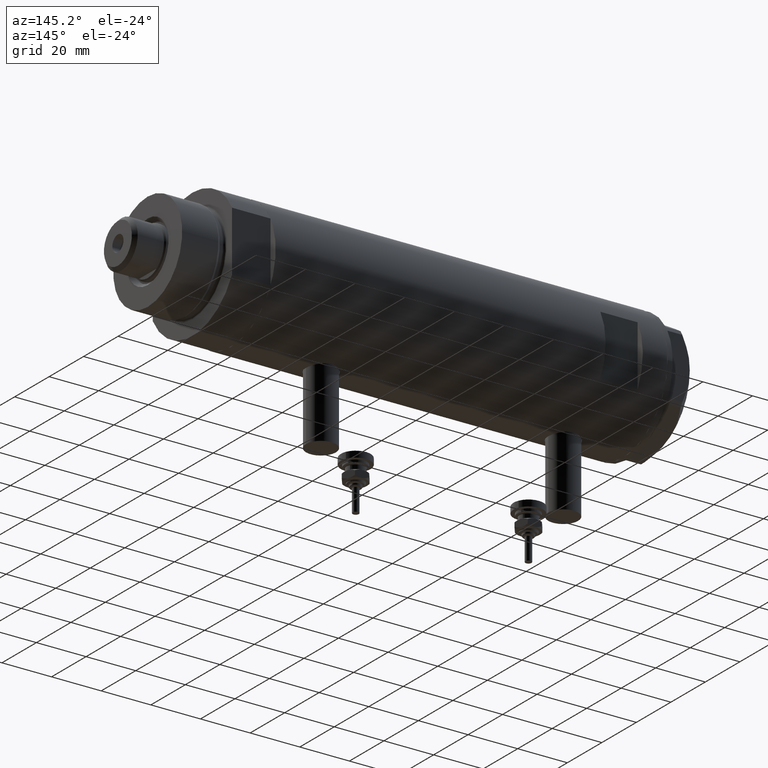
[diagram: clean part render]
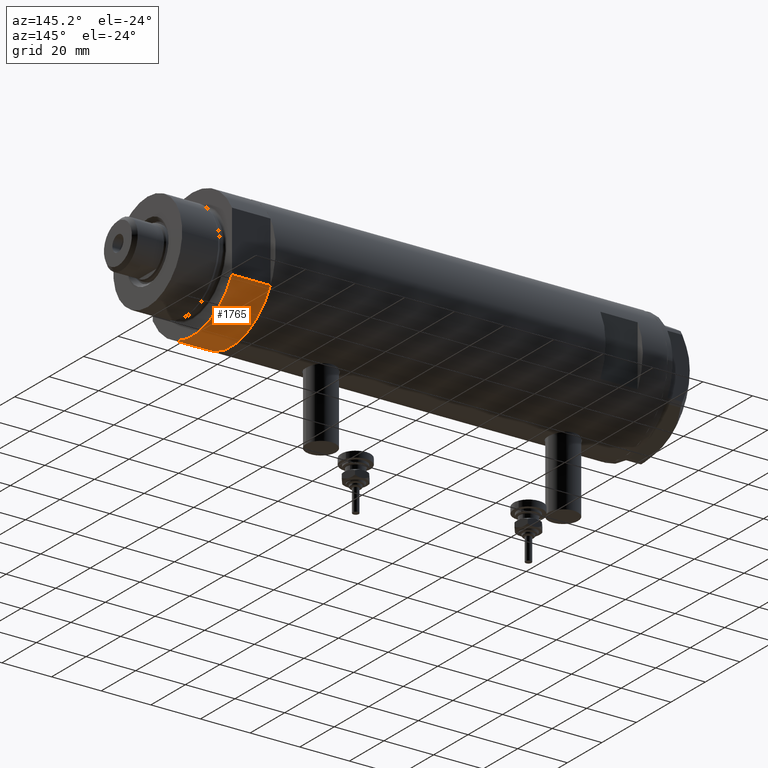
[diagram: same view with one face highlighted and labeled with its STEP entity id]
A machine part, auxiliary view. The second image highlights one B-rep face of the part: STEP entity #1765.
In plain terms, the highlighted cylindrical surface (partial cylindrical patch) has radius 26 mm, axis along (-1, -0, 0).
Its self-contained STEP definition (entity closure, byte-faithful):
#204 = CYLINDRICAL_SURFACE ( 'NONE', #716, 26.00000000000000355 ) ;
#366 = ORIENTED_EDGE ( 'NONE', *, *, #4357, .F. ) ;
#716 = AXIS2_PLACEMENT_3D ( 'NONE', #2131, #2231, #3250 ) ;
#774 = CARTESIAN_POINT ( 'NONE',  ( 12.12435565298215323, -22.99999999999999645, 15.50000000000000000 ) ) ;
#781 = ORIENTED_EDGE ( 'NONE', *, *, #2990, .T. ) ;
#1142 = AXIS2_PLACEMENT_3D ( 'NONE', #1719, #3704, #2239 ) ;
#1246 = CIRCLE ( 'NONE', #2075, 26.00000000000000355 ) ;
#1265 = FACE_OUTER_BOUND ( 'NONE', #5767, .T. ) ;
#1561 = CIRCLE ( 'NONE', #1142, 26.00000000000000355 ) ;
#1600 = DIRECTION ( 'NONE',  ( 0.000000000000000000, 0.000000000000000000, 1.000000000000000000 ) ) ;
#1719 = CARTESIAN_POINT ( 'NONE',  ( 0.000000000000000000, 0.000000000000000000, 0.000000000000000000 ) ) ;
#1765 = ADVANCED_FACE ( 'NONE', ( #1265 ), #204, .T. ) ;
#1777 = VERTEX_POINT ( 'NONE', #3630 ) ;
#2075 = AXIS2_PLACEMENT_3D ( 'NONE', #4027, #1600, #5825 ) ;
#2131 = CARTESIAN_POINT ( 'NONE',  ( 0.000000000000000000, 0.000000000000000000, 15.50000000000000000 ) ) ;
#2231 = DIRECTION ( 'NONE',  ( -0.000000000000000000, -0.000000000000000000, -1.000000000000000000 ) ) ;
#2239 = DIRECTION ( 'NONE',  ( 1.000000000000000000, 0.000000000000000000, 0.000000000000000000 ) ) ;
#2414 = VERTEX_POINT ( 'NONE', #4969 ) ;
#2861 = VERTEX_POINT ( 'NONE', #5958 ) ;
#2878 = LINE ( 'NONE', #3892, #5736 ) ;
#2957 = ORIENTED_EDGE ( 'NONE', *, *, #3623, .F. ) ;
#2990 = EDGE_CURVE ( 'NONE', #2414, #1777, #1561, .T. ) ;
#3250 = DIRECTION ( 'NONE',  ( -1.000000000000000000, 0.000000000000000000, 0.000000000000000000 ) ) ;
#3348 = LINE ( 'NONE', #5172, #5320 ) ;
#3623 = EDGE_CURVE ( 'NONE', #2414, #5174, #3348, .T. ) ;
#3630 = CARTESIAN_POINT ( 'NONE',  ( 12.12435565298214080, 23.00000000000000355, 0.000000000000000000 ) ) ;
#3704 = DIRECTION ( 'NONE',  ( 0.000000000000000000, 0.000000000000000000, 1.000000000000000000 ) ) ;
#3892 = CARTESIAN_POINT ( 'NONE',  ( 12.12435565298215323, 23.00000000000000355, 0.000000000000000000 ) ) ;
#4027 = CARTESIAN_POINT ( 'NONE',  ( 0.000000000000000000, 0.000000000000000000, 15.50000000000000000 ) ) ;
#4357 = EDGE_CURVE ( 'NONE', #5174, #2861, #1246, .T. ) ;
#4492 = ORIENTED_EDGE ( 'NONE', *, *, #5790, .T. ) ;
#4935 = DIRECTION ( 'NONE',  ( -0.000000000000000000, -0.000000000000000000, 1.000000000000000000 ) ) ;
#4969 = CARTESIAN_POINT ( 'NONE',  ( 12.12435565298215323, -22.99999999999999645, 0.000000000000000000 ) ) ;
#5172 = CARTESIAN_POINT ( 'NONE',  ( 12.12435565298215323, -22.99999999999999645, 0.000000000000000000 ) ) ;
#5174 = VERTEX_POINT ( 'NONE', #774 ) ;
#5272 = DIRECTION ( 'NONE',  ( -0.000000000000000000, -0.000000000000000000, 1.000000000000000000 ) ) ;
#5320 = VECTOR ( 'NONE', #5272, 1000.000000000000000 ) ;
#5736 = VECTOR ( 'NONE', #4935, 1000.000000000000000 ) ;
#5767 = EDGE_LOOP ( 'NONE', ( #366, #2957, #781, #4492 ) ) ;
#5790 = EDGE_CURVE ( 'NONE', #1777, #2861, #2878, .T. ) ;
#5825 = DIRECTION ( 'NONE',  ( 1.000000000000000000, 0.000000000000000000, 0.000000000000000000 ) ) ;
#5958 = CARTESIAN_POINT ( 'NONE',  ( 12.12435565298214790, 23.00000000000000355, 15.50000000000000000 ) ) ;